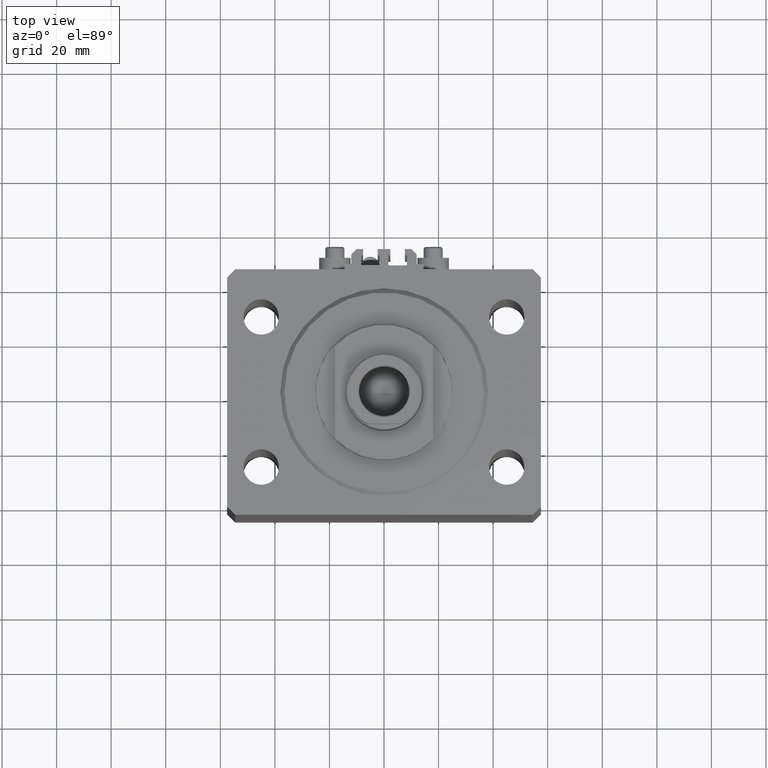
[diagram: clean part render]
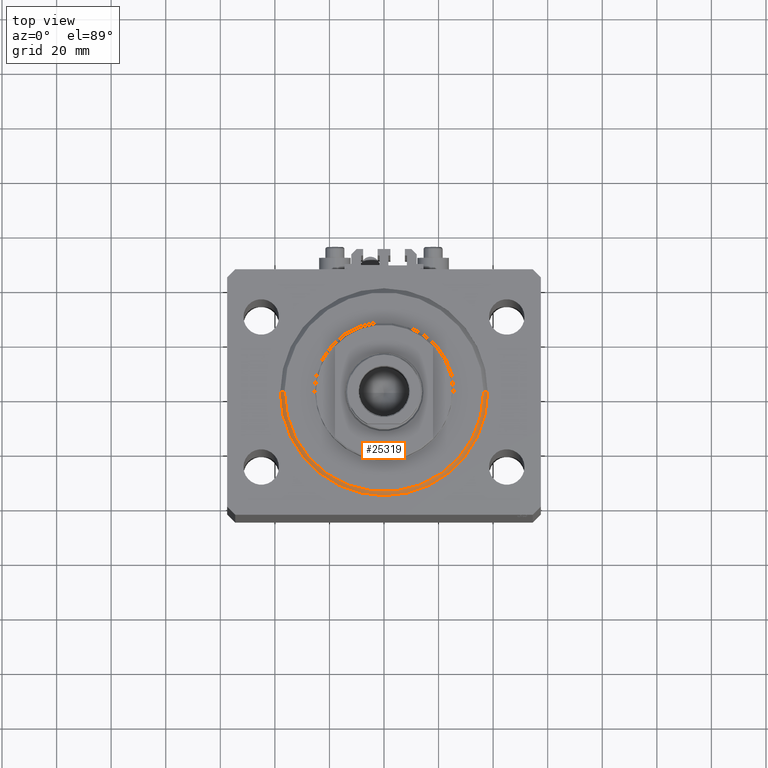
[diagram: same view with one face highlighted and labeled with its STEP entity id]
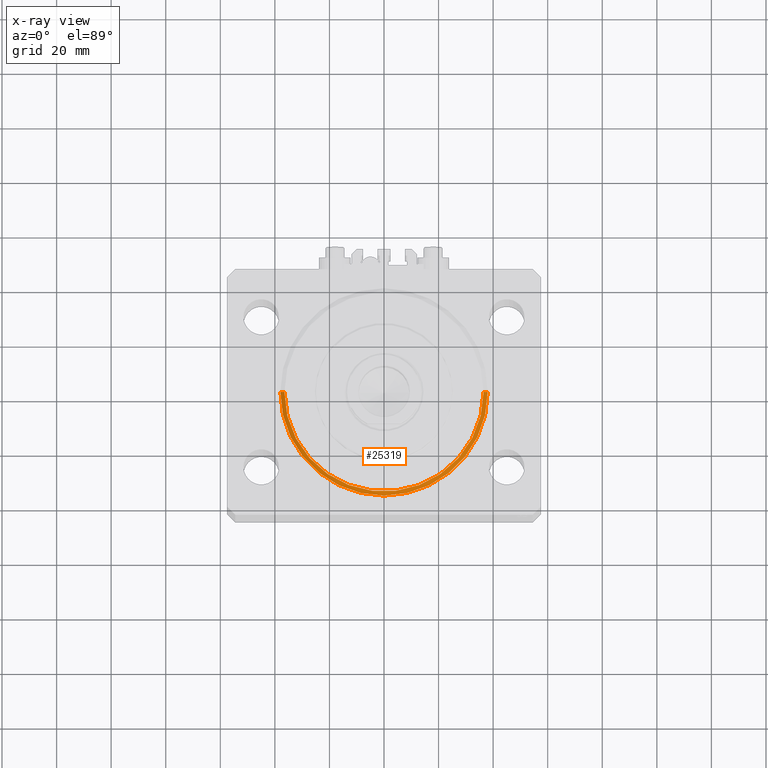
[diagram: x-ray of the same camera — body ghosted, the highlighted face saturated]
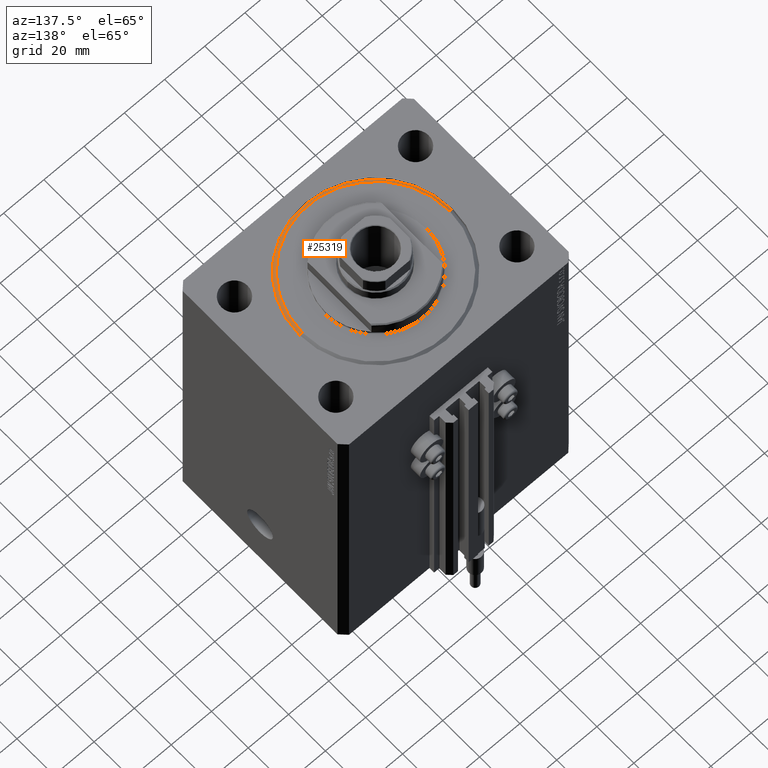
[diagram: same view with one face highlighted and labeled with its STEP entity id]
A machine part, top view. The second image highlights one B-rep face of the part: STEP entity #25319.
The next image is the same camera in x-ray: the body ghosted, the highlighted face saturated — about 0% of this face is hidden behind the body in this view.
A second angle (auxiliary view) of the same face is appended — the face is thin or edge-on in the first view.
In plain terms, the highlighted conical surface has half-angle 45 deg.
Its self-contained STEP definition (entity closure, byte-faithful):
#178 = DIRECTION ( 'NONE',  ( -0.000000000000000000, -0.000000000000000000, 1.000000000000000000 ) ) ;
#668 = ORIENTED_EDGE ( 'NONE', *, *, #42764, .F. ) ;
#1127 = VERTEX_POINT ( 'NONE', #40776 ) ;
#2541 = AXIS2_PLACEMENT_3D ( 'NONE', #10858, #29605, #25970 ) ;
#2775 = VERTEX_POINT ( 'NONE', #39960 ) ;
#2981 = ORIENTED_EDGE ( 'NONE', *, *, #7284, .F. ) ;
#3477 = DIRECTION ( 'NONE',  ( -0.000000000000000000, -0.000000000000000000, -1.000000000000000000 ) ) ;
#3882 = AXIS2_PLACEMENT_3D ( 'NONE', #7353, #3477, #29264 ) ;
#6426 = DIRECTION ( 'NONE',  ( 0.7071067811865491270, 0.000000000000000000, 0.7071067811865459074 ) ) ;
#7284 = EDGE_CURVE ( 'NONE', #2775, #1127, #21717, .T. ) ;
#7353 = CARTESIAN_POINT ( 'NONE',  ( 0.000000000000000000, 0.000000000000000000, 0.000000000000000000 ) ) ;
#10221 = CARTESIAN_POINT ( 'NONE',  ( -38.00000000000000000, 4.653657836759941941E-15, 1.499999999999994449 ) ) ;
#10365 = DIRECTION ( 'NONE',  ( 1.000000000000000000, 0.000000000000000000, 0.000000000000000000 ) ) ;
#10835 = CARTESIAN_POINT ( 'NONE',  ( -38.00000000000000000, 0.000000000000000000, 1.499999999999994449 ) ) ;
#10858 = CARTESIAN_POINT ( 'NONE',  ( 0.000000000000000000, 0.000000000000000000, 1.499999999999994449 ) ) ;
#12030 = AXIS2_PLACEMENT_3D ( 'NONE', #29121, #178, #10365 ) ;
#13971 = LINE ( 'NONE', #39314, #21304 ) ;
#14371 = DIRECTION ( 'NONE',  ( -0.7071067811865491270, 8.659560562354953812E-17, 0.7071067811865459074 ) ) ;
#16910 = VERTEX_POINT ( 'NONE', #27158 ) ;
#19111 = VERTEX_POINT ( 'NONE', #10835 ) ;
#19591 = ORIENTED_EDGE ( 'NONE', *, *, #33936, .F. ) ;
#21304 = VECTOR ( 'NONE', #6426, 1000.000000000000114 ) ;
#21717 = CIRCLE ( 'NONE', #3882, 36.50000000000000000 ) ;
#25319 = ADVANCED_FACE ( 'NONE', ( #32758 ), #42158, .T. ) ;
#25970 = DIRECTION ( 'NONE',  ( 1.000000000000000000, 0.000000000000000000, 0.000000000000000000 ) ) ;
#27158 = CARTESIAN_POINT ( 'NONE',  ( 38.00000000000000000, 4.653657836759941941E-15, 1.499999999999994449 ) ) ;
#29121 = CARTESIAN_POINT ( 'NONE',  ( 0.000000000000000000, 0.000000000000000000, 1.499999999999994449 ) ) ;
#29264 = DIRECTION ( 'NONE',  ( 1.000000000000000000, 0.000000000000000000, 0.000000000000000000 ) ) ;
#29605 = DIRECTION ( 'NONE',  ( -0.000000000000000000, -0.000000000000000000, 1.000000000000000000 ) ) ;
#29656 = EDGE_LOOP ( 'NONE', ( #19591, #2981, #46164, #668 ) ) ;
#29842 = VECTOR ( 'NONE', #14371, 1000.000000000000114 ) ;
#32623 = LINE ( 'NONE', #10221, #29842 ) ;
#32758 = FACE_OUTER_BOUND ( 'NONE', #29656, .T. ) ;
#33936 = EDGE_CURVE ( 'NONE', #1127, #19111, #32623, .T. ) ;
#39314 = CARTESIAN_POINT ( 'NONE',  ( 38.00000000000000000, 0.000000000000000000, 1.499999999999994449 ) ) ;
#39960 = CARTESIAN_POINT ( 'NONE',  ( 36.50000000000000000, 0.000000000000000000, 0.000000000000000000 ) ) ;
#40776 = CARTESIAN_POINT ( 'NONE',  ( -36.50000000000000000, 4.561809326823889791E-15, 0.000000000000000000 ) ) ;
#41004 = EDGE_CURVE ( 'NONE', #2775, #16910, #13971, .T. ) ;
#42158 = CONICAL_SURFACE ( 'NONE', #2541, 38.00000000000000000, 0.7853981633974506105 ) ;
#42764 = EDGE_CURVE ( 'NONE', #19111, #16910, #43936, .T. ) ;
#43936 = CIRCLE ( 'NONE', #12030, 38.00000000000000000 ) ;
#46164 = ORIENTED_EDGE ( 'NONE', *, *, #41004, .T. ) ;